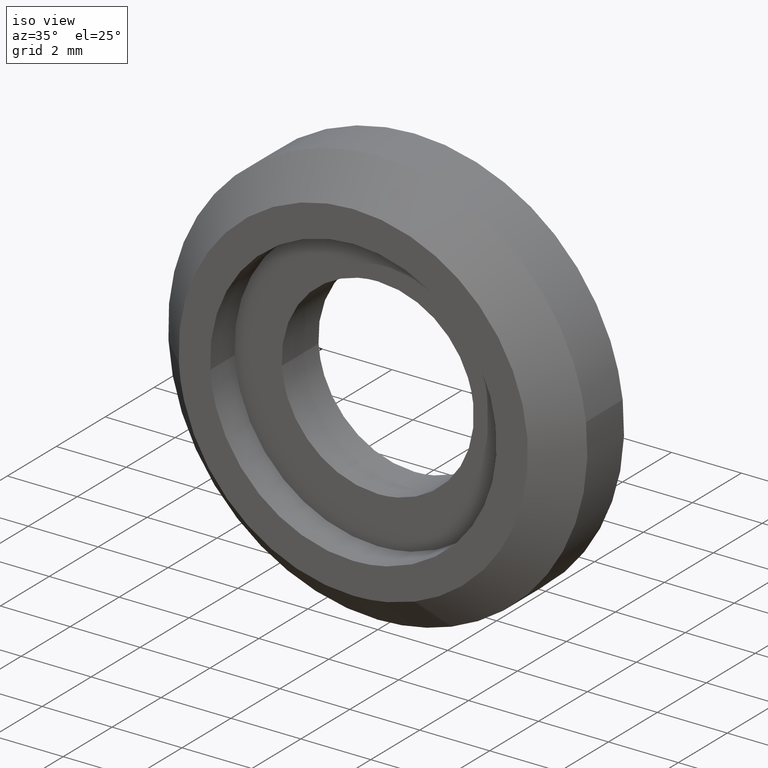
[diagram: clean part render]
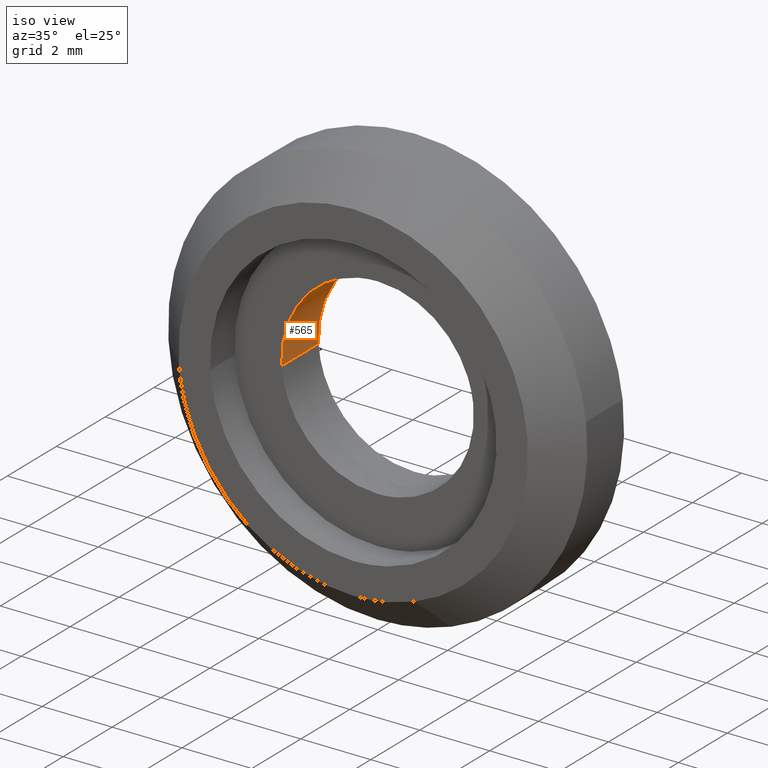
[diagram: same view with one face highlighted and labeled with its STEP entity id]
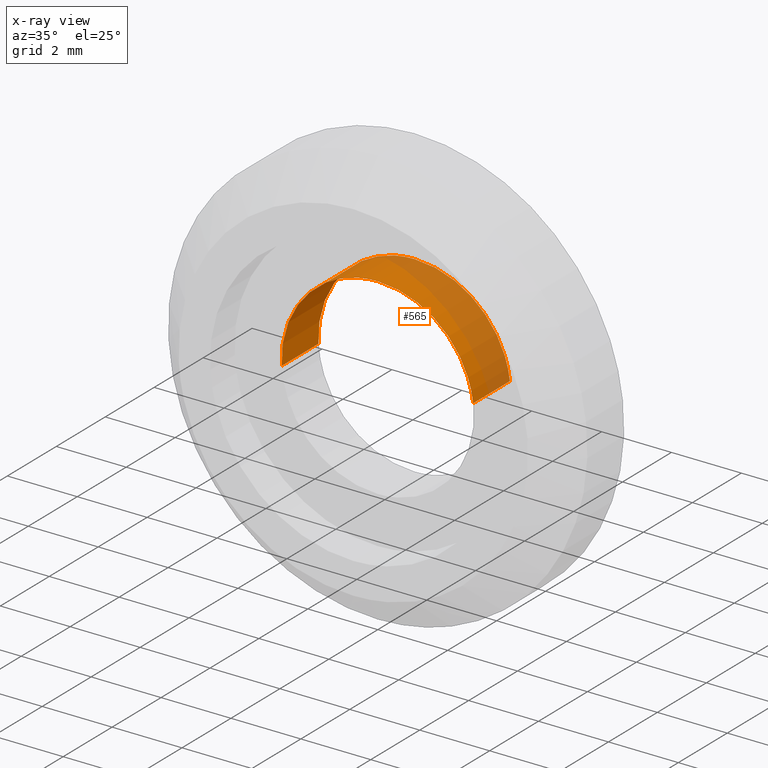
[diagram: x-ray of the same camera — body ghosted, the highlighted face saturated]
A machine part, iso view. The second image highlights one B-rep face of the part: STEP entity #565.
The next image is the same camera in x-ray: the body ghosted, the highlighted face saturated — about 43% of this face is hidden behind the body in this view.
In plain terms, the highlighted face is a freeform B-spline surface patch.
Its self-contained STEP definition (entity closure, byte-faithful):
#398=CARTESIAN_POINT('',(2.730776685649423,1.500000000000011,0.324590038504644));
#399=VERTEX_POINT('',#398);
#417=CARTESIAN_POINT('',(-2.744870953723958,1.500000000000022,-0.167879264308188));
#418=VERTEX_POINT('',#417);
#432=CARTESIAN_POINT('',(-2.744870950539090,3.469447E-017,-0.167879316382936));
#433=VERTEX_POINT('',#432);
#434=CARTESIAN_POINT('',(-2.744870950539090,3.469447E-017,-0.167879316382936));
#435=CARTESIAN_POINT('',(-2.744870953723958,1.500000000000022,-0.167879264308188));
#436=QUASI_UNIFORM_CURVE('',1,(#434,#435),.UNSPECIFIED.,.F.,.U.);
#437=EDGE_CURVE('',#433,#418,#436,.T.);
#454=CARTESIAN_POINT('',(2.730776679625815,3.194357E-017,0.324590089181917));
#455=VERTEX_POINT('',#454);
#471=CARTESIAN_POINT('',(2.730776679625815,3.194357E-017,0.324590089181917));
#472=CARTESIAN_POINT('',(2.730776685649423,1.500000000000011,0.324590038504644));
#473=QUASI_UNIFORM_CURVE('',1,(#471,#472),.UNSPECIFIED.,.F.,.U.);
#474=EDGE_CURVE('',#455,#399,#473,.T.);
#479=CARTESIAN_POINT('',(-2.742557482287090,-0.037500000000000,-0.205704188055494));
#480=CARTESIAN_POINT('',(-2.743710778967167,-0.037500000000000,-0.186847954015175));
#481=CARTESIAN_POINT('',(-2.912754179380990,-0.037500000000000,2.576987211939278));
#482=CARTESIAN_POINT('',(-0.167883483720857,-0.037500000000000,2.744870695660134));
#483=CARTESIAN_POINT('',(2.424244599808628,-0.037500000000000,2.903412041014450));
#484=CARTESIAN_POINT('',(2.733071324263455,-0.037500000000000,0.305285486704895));
#485=CARTESIAN_POINT('',(2.735354115827338,-0.037500000000000,0.286080602831752));
#486=CARTESIAN_POINT('',(-2.742557482287090,1.538437500000000,-0.205704188055494));
#487=CARTESIAN_POINT('',(-2.743710778967167,1.538437500000001,-0.186847954015175));
#488=CARTESIAN_POINT('',(-2.912754179380990,1.538437500000001,2.576987211939278));
#489=CARTESIAN_POINT('',(-0.167883483720857,1.538437500000000,2.744870695660134));
#490=CARTESIAN_POINT('',(2.424244599808628,1.538437500000000,2.903412041014450));
#491=CARTESIAN_POINT('',(2.733071324263455,1.538437500000001,0.305285486704895));
#492=CARTESIAN_POINT('',(2.735354115827338,1.538437500000000,0.286080602831752));
#500=(BOUNDED_SURFACE()B_SPLINE_SURFACE(2,1,((#479,#486),(#480,#487),(#481,#488),(#482,#489),(#483,#490),(#484,#491),(#485,#492)),.UNSPECIFIED.,.F.,.F.,.U.)B_SPLINE_SURFACE_WITH_KNOTS((3,1,2,1,3),(2,2),(0.0,0.044647328788295,4.600996514892342,8.975091733552226,9.019748690098576),(0.0,1.0),.UNSPECIFIED.)GEOMETRIC_REPRESENTATION_ITEM()RATIONAL_B_SPLINE_SURFACE(((1.005740077990558,1.005740077990558),(1.002870038995279,1.002870038995279),(0.707106781186548,0.707106781186548),(1.0,1.0),(0.718822509939086,0.718822509939086),(0.980146806054853,0.980146806054853),(0.982787811314580,0.982787811314580)))REPRESENTATION_ITEM('')SURFACE());
#501=CARTESIAN_POINT('',(0.0,1.500000000000000,2.750000000000000));
#502=VERTEX_POINT('',#501);
#503=CARTESIAN_POINT('',(0.0,1.500000000000000,2.750000000000000));
#504=CARTESIAN_POINT('',(2.442483645460547,1.500000000000001,2.750000000000000));
#505=CARTESIAN_POINT('',(2.730776685649423,1.500000000000012,0.324590038504644));
#513=(BOUNDED_CURVE()B_SPLINE_CURVE(2,(#503,#504,#505),.UNSPECIFIED.,.F.,.U.)B_SPLINE_CURVE_WITH_KNOTS((3,3),(0.0,0.229562727678856),.UNSPECIFIED.)CURVE()GEOMETRIC_REPRESENTATION_ITEM()RATIONAL_B_SPLINE_CURVE((1.0,0.731050535082176,0.956027252358787))REPRESENTATION_ITEM(''));
#514=EDGE_CURVE('',#502,#399,#513,.T.);
#515=ORIENTED_EDGE('',*,*,#514,.T.);
#516=ORIENTED_EDGE('',*,*,#474,.F.);
#517=CARTESIAN_POINT('',(0.0,0.0,2.750000000000000));
#518=VERTEX_POINT('',#517);
#519=CARTESIAN_POINT('',(0.0,0.0,2.750000000000000));
#520=CARTESIAN_POINT('',(2.442483599814294,0.0,2.750000000000000));
#521=CARTESIAN_POINT('',(2.730776679625815,3.194357E-017,0.324590089181916));
#529=(BOUNDED_CURVE()B_SPLINE_CURVE(2,(#519,#520,#521),.UNSPECIFIED.,.F.,.U.)B_SPLINE_CURVE_WITH_KNOTS((3,3),(0.0,0.229562724542522),.UNSPECIFIED.)CURVE()GEOMETRIC_REPRESENTATION_ITEM()RATIONAL_B_SPLINE_CURVE((1.0,0.731050538756619,0.956027246211430))REPRESENTATION_ITEM(''));
#530=EDGE_CURVE('',#518,#455,#529,.T.);
#531=ORIENTED_EDGE('',*,*,#530,.F.);
#532=CARTESIAN_POINT('',(-2.744870950539089,3.469447E-017,-0.167879316382936));
#533=CARTESIAN_POINT('',(-2.750000000000000,0.0,-0.084018009559996));
#534=CARTESIAN_POINT('',(-2.750000000000000,0.0,0.0));
#535=CARTESIAN_POINT('',(-2.750000000000000,0.0,2.750000000000000));
#536=CARTESIAN_POINT('',(0.0,0.0,2.750000000000000));
#544=(BOUNDED_CURVE()B_SPLINE_CURVE(2,(#532,#533,#534,#535,#536),.UNSPECIFIED.,.F.,.U.)B_SPLINE_CURVE_WITH_KNOTS((3,2,3),(0.739333224207285,0.750000000000000,1.0),.UNSPECIFIED.)CURVE()GEOMETRIC_REPRESENTATION_ITEM()RATIONAL_B_SPLINE_CURVE((0.976072603115385,0.987503094814841,1.0,0.707106781186548,1.0))REPRESENTATION_ITEM(''));
#545=EDGE_CURVE('',#433,#518,#544,.T.);
#546=ORIENTED_EDGE('',*,*,#545,.F.);
#547=ORIENTED_EDGE('',*,*,#437,.T.);
#548=CARTESIAN_POINT('',(-2.744870953723959,1.500000000000022,-0.167879264308188));
#549=CARTESIAN_POINT('',(-2.750000000000000,1.500000000000000,-0.084017983449622));
#550=CARTESIAN_POINT('',(-2.750000000000000,1.500000000000000,0.0));
#551=CARTESIAN_POINT('',(-2.750000000000000,1.500000000000000,2.750000000000000));
#552=CARTESIAN_POINT('',(0.0,1.500000000000000,2.750000000000000));
#560=(BOUNDED_CURVE()B_SPLINE_CURVE(2,(#548,#549,#550,#551,#552),.UNSPECIFIED.,.F.,.U.)B_SPLINE_CURVE_WITH_KNOTS((3,2,3),(0.739333227480785,0.750000000000000,1.0),.UNSPECIFIED.)CURVE()GEOMETRIC_REPRESENTATION_ITEM()RATIONAL_B_SPLINE_CURVE((0.976072610131135,0.987503098649985,1.0,0.707106781186548,1.0))REPRESENTATION_ITEM(''));
#561=EDGE_CURVE('',#418,#502,#560,.T.);
#562=ORIENTED_EDGE('',*,*,#561,.T.);
#563=EDGE_LOOP('',(#515,#516,#531,#546,#547,#562));
#564=FACE_OUTER_BOUND('',#563,.T.);
#565=ADVANCED_FACE('',(#564),#500,.F.);